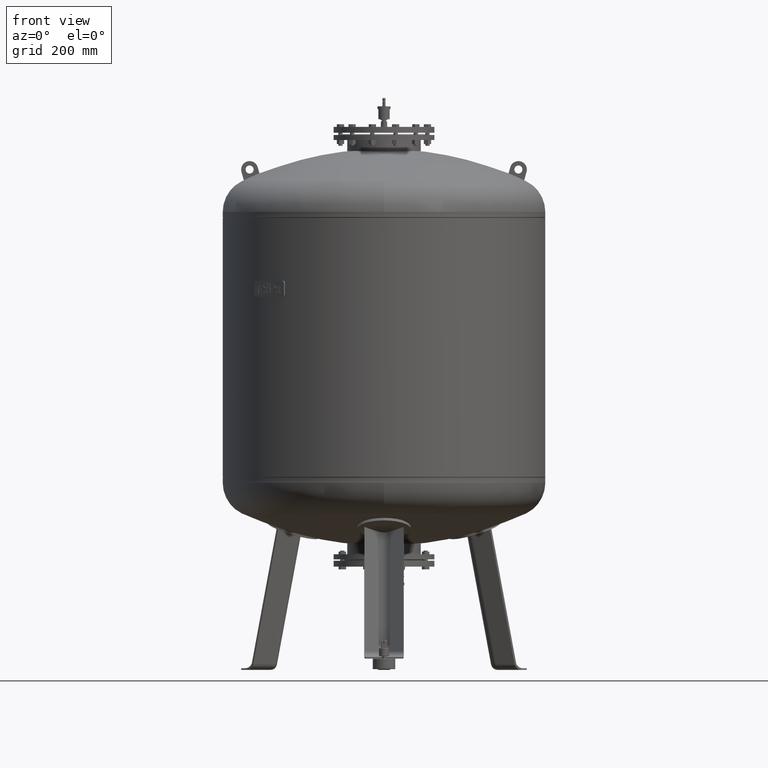
[diagram: clean part render]
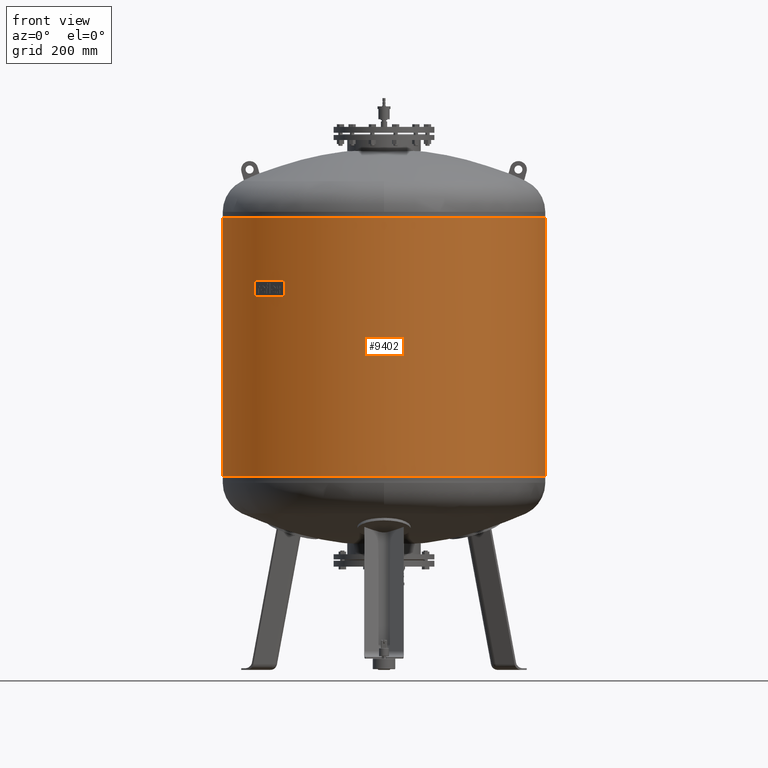
[diagram: same view with one face highlighted and labeled with its STEP entity id]
A machine part, front view. The second image highlights one B-rep face of the part: STEP entity #9402.
In plain terms, the highlighted cylindrical surface (partial cylindrical patch) has radius 600 mm, axis along (0, 0, 1).
Its self-contained STEP definition (entity closure, byte-faithful):
#9361=CARTESIAN_POINT('',(8.293918E-015,0.0,1433.500000000000000));
#9362=DIRECTION('',(3.337593E-017,0.0,1.0));
#9363=DIRECTION('',(1.0,0.0,0.0));
#9364=AXIS2_PLACEMENT_3D('',#9361,#9362,#9363);
#9365=CYLINDRICAL_SURFACE('',#9364,600.000000000000450);
#9366=CARTESIAN_POINT('',(600.000000000000570,0.0,1681.999999999999800));
#9367=VERTEX_POINT('',#9366);
#9368=CARTESIAN_POINT('',(600.000000000000110,0.0,717.999999999999770));
#9369=VERTEX_POINT('',#9368);
#9370=CARTESIAN_POINT('',(600.000000000000570,0.0,1681.999999999999800));
#9371=DIRECTION('',(0.0,0.0,-1.0));
#9372=VECTOR('',#9371,964.0);
#9373=LINE('',#9370,#9372);
#9374=EDGE_CURVE('',#9367,#9369,#9373,.T.);
#9375=ORIENTED_EDGE('',*,*,#9374,.F.);
#9376=CARTESIAN_POINT('',(-600.000000000000450,-7.347638E-014,1681.999999999999800));
#9377=VERTEX_POINT('',#9376);
#9378=CARTESIAN_POINT('',(1.658784E-014,0.0,1681.999999999999800));
#9379=DIRECTION('',(0.0,0.0,1.0));
#9380=DIRECTION('',(1.0,0.0,0.0));
#9381=AXIS2_PLACEMENT_3D('',#9378,#9379,#9380);
#9382=CIRCLE('',#9381,600.000000000000570);
#9383=EDGE_CURVE('',#9377,#9367,#9382,.T.);
#9384=ORIENTED_EDGE('',*,*,#9383,.F.);
#9385=CARTESIAN_POINT('',(-600.000000000000110,-7.347638E-014,717.999999999999770));
#9386=VERTEX_POINT('',#9385);
#9387=CARTESIAN_POINT('',(-600.000000000000450,-7.347638E-014,1681.999999999999800));
#9388=DIRECTION('',(0.0,0.0,-1.0));
#9389=VECTOR('',#9388,964.0);
#9390=LINE('',#9387,#9389);
#9391=EDGE_CURVE('',#9377,#9386,#9390,.T.);
#9392=ORIENTED_EDGE('',*,*,#9391,.T.);
#9393=CARTESIAN_POINT('',(-1.658784E-014,0.0,717.999999999999770));
#9394=DIRECTION('',(0.0,0.0,1.0));
#9395=DIRECTION('',(1.0,0.0,0.0));
#9396=AXIS2_PLACEMENT_3D('',#9393,#9394,#9395);
#9397=CIRCLE('',#9396,600.000000000000110);
#9398=EDGE_CURVE('',#9386,#9369,#9397,.T.);
#9399=ORIENTED_EDGE('',*,*,#9398,.T.);
#9400=EDGE_LOOP('',(#9375,#9384,#9392,#9399));
#9401=FACE_OUTER_BOUND('',#9400,.T.);
#9402=ADVANCED_FACE('',(#9401),#9365,.T.);